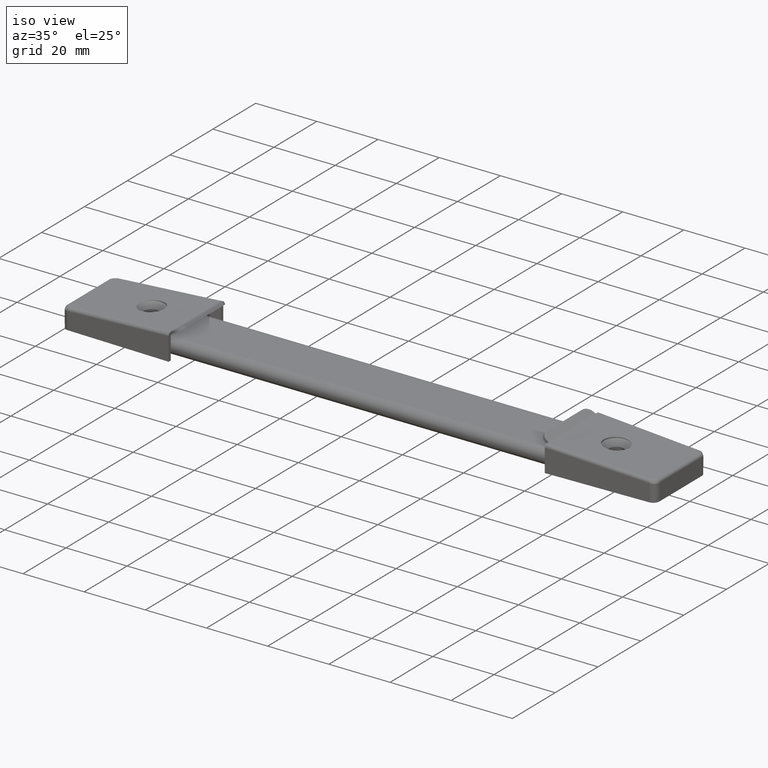
[diagram: clean part render]
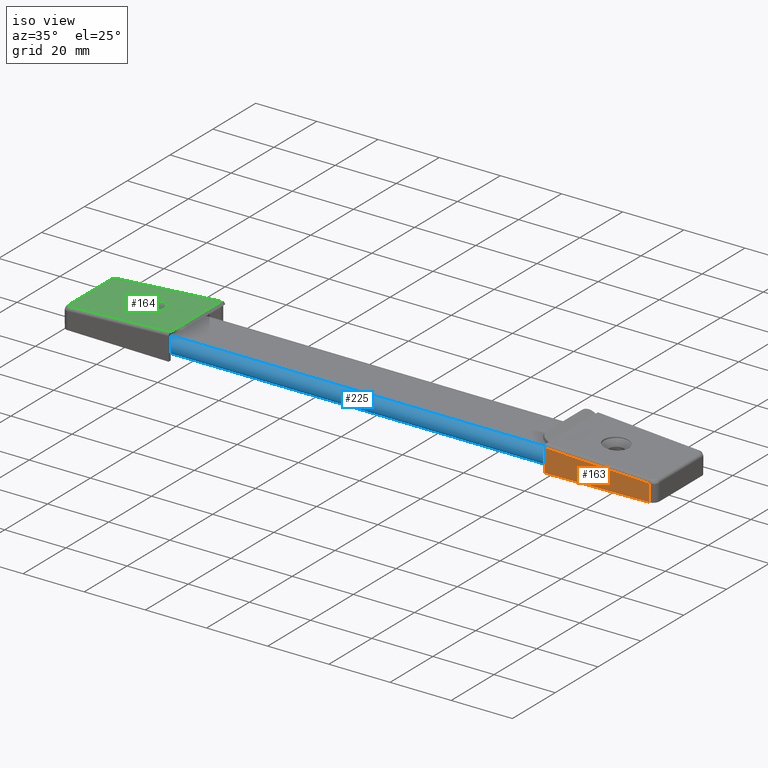
[diagram: same view with three faces highlighted in distinct colors, each labeled with its STEP entity id]
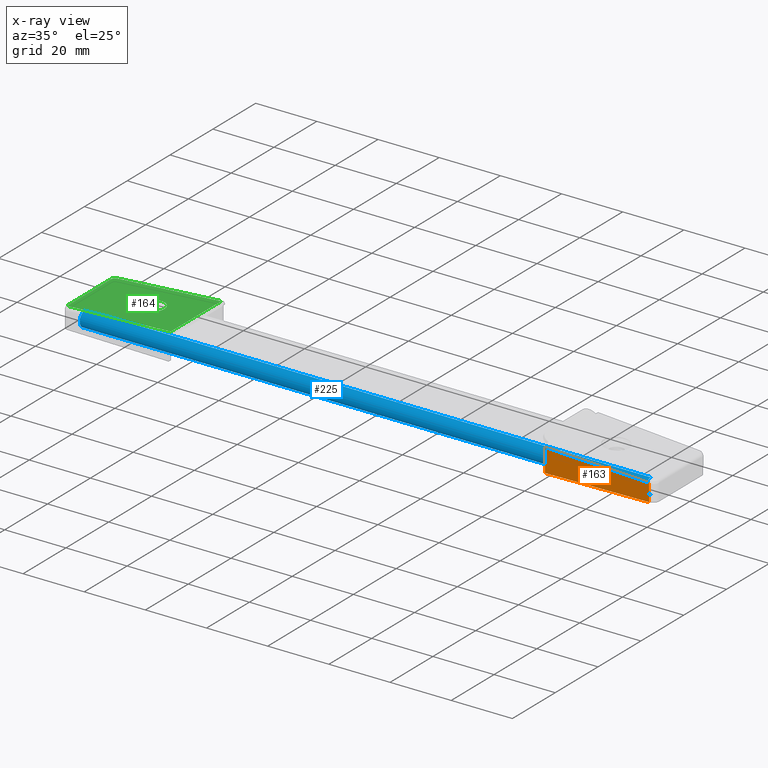
[diagram: x-ray of the same camera — body ghosted, the three highlighted faces saturated]
A machine part, iso view with three faces highlighted in distinct colors.
The next image is the same camera in x-ray (body ghosted, the three faces saturated) — at least one of them is partly hidden behind the body in this view.
Their STEP definitions:

[orange] entity #163 — the highlighted planar face has unit normal (0.0252, -0.9997, 0).
#163=ADVANCED_FACE('',(#287),#286,.T.);
#286=PLANE('',#1086);
#287=FACE_OUTER_BOUND('',#1087,.T.);
#1083=CARTESIAN_POINT('',(5.81449760894E+01,-1.28345101633E+01,-7.49983222875E-01));
#1084=DIRECTION('',(2.51810590883E-02,-9.99682906858E-01,0.00000000000E+00));
#1085=DIRECTION('',(9.99682906858E-01,2.51810590883E-02,0.00000000000E+00));
#1086=AXIS2_PLACEMENT_3D('',#1083,#1084,#1085);
#1087=EDGE_LOOP('',(#1557,#1558,#1559,#1560));
#1557=ORIENTED_EDGE('',*,*,#1953,.F.);
#1558=ORIENTED_EDGE('',*,*,#1954,.T.);
#1559=ORIENTED_EDGE('',*,*,#1955,.T.);
#1560=ORIENTED_EDGE('',*,*,#1948,.F.);
#1948=EDGE_CURVE('',#2259,#2266,#2267,.T.);
#1953=EDGE_CURVE('',#2300,#2259,#2301,.T.);
#1954=EDGE_CURVE('',#2300,#2307,#2308,.T.);
#1955=EDGE_CURVE('',#2307,#2266,#2314,.T.);
#2259=VERTEX_POINT('',#3540);
#2266=VERTEX_POINT('',#3545);
#2267=LINE('',#3546,#3547);
#2300=VERTEX_POINT('',#3565);
#2301=LINE('',#3566,#3567);
#2307=VERTEX_POINT('',#3569);
#2308=LINE('',#3570,#3571);
#2314=LINE('',#3573,#3574);
#3540=CARTESIAN_POINT('',(9.50503744193E+01,-1.19048983738E+01,0.00000000000E+00));
#3545=CARTESIAN_POINT('',(6.15000123012E+01,-1.27500000006E+01,0.00000000000E+00));
#3546=CARTESIAN_POINT('',(9.50503744193E+01,-1.19048983738E+01,0.00000000000E+00));
#3547=VECTOR('',#3548,3.35610040824E+01);
#3548=DIRECTION('',(-9.99682906858E-01,-2.51810590883E-02,0.00000000000E+00));
#3565=CARTESIAN_POINT('',(9.50503744193E+01,-1.19048983738E+01,5.60967098266E+00));
#3566=CARTESIAN_POINT('',(9.50503744193E+01,-1.19048983738E+01,5.60967098266E+00));
#3567=VECTOR('',#3568,5.60967098266E+00);
#3568=DIRECTION('',(0.00000000000E+00,0.00000000000E+00,-1.00000000000E+00));
#3569=CARTESIAN_POINT('',(6.15000123012E+01,-1.27500000006E+01,7.49983222875E+00));
#3570=CARTESIAN_POINT('',(9.50503744193E+01,-1.19048983738E+01,5.60967098266E+00));
#3571=VECTOR('',#3572,3.36141890361E+01);
#3572=DIRECTION('',(-9.98101191200E-01,-2.51412171793E-02,5.62310530253E-02));
#3573=CARTESIAN_POINT('',(6.15000123012E+01,-1.27500000006E+01,7.49983222875E+00));
#3574=VECTOR('',#3575,7.49983222875E+00);
#3575=DIRECTION('',(0.00000000000E+00,0.00000000000E+00,-1.00000000000E+00));

[blue] entity #225 — the highlighted cylindrical surface (edge-blend (fillet) strip) has radius 2.5 mm, axis along (1, -0, 0).
#225=ADVANCED_FACE('',(#919),#918,.T.);
#918=CYLINDRICAL_SURFACE('',#1470,2.50000000000E+00);
#919=FACE_OUTER_BOUND('',#1471,.T.);
#1467=CARTESIAN_POINT('',(-6.32939646640E-16,-7.50000000000E+00,2.50000000000E+00));
#1468=DIRECTION('',(1.00000000000E+00,-8.43919528854E-17,-0.00000000000E+00));
#1469=DIRECTION('',(8.43919528854E-17,1.00000000000E+00,-0.00000000000E+00));
#1470=AXIS2_PLACEMENT_3D('',#1467,#1468,#1469);
#1471=EDGE_LOOP('',(#1868,#1869,#1870,#1871));
#1868=ORIENTED_EDGE('',*,*,#2105,.F.);
#1869=ORIENTED_EDGE('',*,*,#2098,.F.);
#1870=ORIENTED_EDGE('',*,*,#2113,.F.);
#1871=ORIENTED_EDGE('',*,*,#2091,.F.);
#2091=EDGE_CURVE('',#3207,#3192,#3214,.T.);
#2098=EDGE_CURVE('',#3256,#3263,#3264,.T.);
#2105=EDGE_CURVE('',#3263,#3207,#3310,.T.);
#2113=EDGE_CURVE('',#3192,#3256,#3363,.T.);
#3192=VERTEX_POINT('',#4078);
#3207=VERTEX_POINT('',#4088);
#3214=CIRCLE('',#4095,2.50000000000E+00);
#3256=VERTEX_POINT('',#4120);
#3263=VERTEX_POINT('',#4124);
#3264=CIRCLE('',#4128,2.50000000000E+00);
#3310=LINE('',#4153,#4154);
#3363=LINE('',#4185,#4186);
#4078=CARTESIAN_POINT('',(9.25000000000E+01,-7.50000000000E+00,0.00000000000E+00));
#4088=CARTESIAN_POINT('',(9.25000000000E+01,-7.50000000000E+00,5.00000000000E+00));
#4092=CARTESIAN_POINT('',(9.25000000000E+01,-7.50000000000E+00,2.50000000000E+00));
#4093=DIRECTION('',(1.00000000000E+00,0.00000000000E+00,-0.00000000000E+00));
#4094=DIRECTION('',(-0.00000000000E+00,-0.00000000000E+00,-1.00000000000E+00));
#4095=AXIS2_PLACEMENT_3D('',#4092,#4093,#4094);
#4120=CARTESIAN_POINT('',(-9.25000000000E+01,-7.50000000000E+00,0.00000000000E+00));
#4124=CARTESIAN_POINT('',(-9.25000000000E+01,-7.50000000000E+00,5.00000000000E+00));
#4125=CARTESIAN_POINT('',(-9.25000000000E+01,-7.50000000000E+00,2.50000000000E+00));
#4126=DIRECTION('',(-1.00000000000E+00,5.55111512313E-15,1.75162308041E-46));
#4127=DIRECTION('',(1.01968962759E-30,1.83690953073E-16,1.00000000000E+00));
#4128=AXIS2_PLACEMENT_3D('',#4125,#4126,#4127);
#4153=CARTESIAN_POINT('',(-9.25000000000E+01,-7.50000000000E+00,5.00000000000E+00));
#4154=VECTOR('',#4155,1.85000000000E+02);
#4155=DIRECTION('',(1.00000000000E+00,-8.64173597546E-17,0.00000000000E+00));
#4185=CARTESIAN_POINT('',(9.25000000000E+01,-7.50000000000E+00,0.00000000000E+00));
#4186=VECTOR('',#4187,1.85000000000E+02);
#4187=DIRECTION('',(-1.00000000000E+00,8.64173597546E-17,0.00000000000E+00));

[green] entity #164 — the highlighted planar face has unit normal (-0.0562, 0, 0.9984).
#164=ADVANCED_FACE('',(#297,#298),#296,.T.);
#296=PLANE('',#1091);
#297=FACE_OUTER_BOUND('',#1092,.T.);
#298=FACE_BOUND('',#1093,.T.);
#1088=CARTESIAN_POINT('',(5.80448545443E+01,-1.41013067575E+01,8.69465608201E+00));
#1089=DIRECTION('',(5.62488327390E-02,0.00000000000E+00,9.98416781117E-01));
#1090=DIRECTION('',(9.98416781117E-01,0.00000000000E+00,-5.62488327390E-02));
#1091=AXIS2_PLACEMENT_3D('',#1088,#1089,#1090);
#1092=EDGE_LOOP('',(#1561,#1562,#1563,#1564,#1565,#1566,#1567,#1568));
#1093=EDGE_LOOP('',(#1569,#1570));
#1561=ORIENTED_EDGE('',*,*,#1931,.T.);
#1562=ORIENTED_EDGE('',*,*,#1956,.T.);
#1563=ORIENTED_EDGE('',*,*,#1941,.F.);
#1564=ORIENTED_EDGE('',*,*,#1957,.T.);
#1565=ORIENTED_EDGE('',*,*,#1958,.F.);
#1566=ORIENTED_EDGE('',*,*,#1959,.T.);
#1567=ORIENTED_EDGE('',*,*,#1960,.T.);
#1568=ORIENTED_EDGE('',*,*,#1961,.T.);
#1569=ORIENTED_EDGE('',*,*,#1962,.T.);
#1570=ORIENTED_EDGE('',*,*,#1963,.T.);
#1931=EDGE_CURVE('',#2129,#2144,#2151,.T.);
#1941=EDGE_CURVE('',#2212,#2219,#2220,.T.);
#1956=EDGE_CURVE('',#2144,#2219,#2320,.T.);
#1957=EDGE_CURVE('',#2212,#2326,#2327,.T.);
#1958=EDGE_CURVE('',#2333,#2326,#2334,.T.);
#1959=EDGE_CURVE('',#2333,#2340,#2341,.T.);
#1960=EDGE_CURVE('',#2340,#2347,#2348,.T.);
#1961=EDGE_CURVE('',#2347,#2129,#2354,.T.);
#1962=EDGE_CURVE('',#2360,#2361,#2362,.T.);
#1963=EDGE_CURVE('',#2361,#2360,#2368,.T.);
#2129=VERTEX_POINT('',#3464);
#2144=VERTEX_POINT('',#3474);
#2151=(BOUNDED_CURVE() B_SPLINE_CURVE(2,(#3479,#3480,#3481),.UNSPECIFIED.,.F.,.F.) B_SPLINE_CURVE_WITH_KNOTS((3,3),(4.51017001503E-12,1.54561260580E+00),.UNSPECIFIED.) CURVE() GEOMETRIC_REPRESENTATION_ITEM() RATIONAL_B_SPLINE_CURVE((1.00000000000E+00,7.15954278947E-01,1.00000000000E+00)) REPRESENTATION_ITEM('') );
#2212=VERTEX_POINT('',#3514);
#2219=VERTEX_POINT('',#3518);
#2220=(BOUNDED_CURVE() B_SPLINE_CURVE(1,(#3519,#3520),.UNSPECIFIED.,.F.,.F.) B_SPLINE_CURVE_WITH_KNOTS((2,2),(0.00000000000E+00,1.00000000000E+00),.UNSPECIFIED.) CURVE() GEOMETRIC_REPRESENTATION_ITEM() RATIONAL_B_SPLINE_CURVE((1.00000000000E+00,1.00000000000E+00)) REPRESENTATION_ITEM('') );
#2320=(BOUNDED_CURVE() B_SPLINE_CURVE(1,(#3576,#3577),.UNSPECIFIED.,.F.,.F.) B_SPLINE_CURVE_WITH_KNOTS((2,2),(0.00000000000E+00,1.00000000000E+00),.UNSPECIFIED.) CURVE() GEOMETRIC_REPRESENTATION_ITEM() RATIONAL_B_SPLINE_CURVE((1.00000000000E+00,1.00000000000E+00)) REPRESENTATION_ITEM('') );
#2326=VERTEX_POINT('',#3578);
#2327=LINE('',#3579,#3580);
#2333=VERTEX_POINT('',#3582);
#2334=(BOUNDED_CURVE() B_SPLINE_CURVE(1,(#3583,#3584),.UNSPECIFIED.,.F.,.F.) B_SPLINE_CURVE_WITH_KNOTS((2,2),(0.00000000000E+00,1.00000000000E+00),.UNSPECIFIED.) CURVE() GEOMETRIC_REPRESENTATION_ITEM() RATIONAL_B_SPLINE_CURVE((1.00000000000E+00,1.00000000000E+00)) REPRESENTATION_ITEM('') );
#2340=VERTEX_POINT('',#3585);
#2341=(BOUNDED_CURVE() B_SPLINE_CURVE(1,(#3586,#3587),.UNSPECIFIED.,.F.,.F.) B_SPLINE_CURVE_WITH_KNOTS((2,2),(0.00000000000E+00,1.00000000000E+00),.UNSPECIFIED.) CURVE() GEOMETRIC_REPRESENTATION_ITEM() RATIONAL_B_SPLINE_CURVE((1.00000000000E+00,1.00000000000E+00)) REPRESENTATION_ITEM('') );
#2347=VERTEX_POINT('',#3588);
#2348=(BOUNDED_CURVE() B_SPLINE_CURVE(2,(#3589,#3590,#3591),.UNSPECIFIED.,.F.,.F.) B_SPLINE_CURVE_WITH_KNOTS((3,3),(-1.54561260579E+00,3.73923114694E-12),.UNSPECIFIED.) CURVE() GEOMETRIC_REPRESENTATION_ITEM() RATIONAL_B_SPLINE_CURVE((1.00000000000E+00,7.15954278947E-01,1.00000000000E+00)) REPRESENTATION_ITEM('') );
#2354=LINE('',#3592,#3593);
#2360=VERTEX_POINT('',#3595);
#2361=VERTEX_POINT('',#3596);
#2362=(BOUNDED_CURVE() B_SPLINE_CURVE(2,(#3597,#3598,#3599,#3600,#3601),.UNSPECIFIED.,.F.,.F.) B_SPLINE_CURVE_WITH_KNOTS((3,2,3),(-6.28318530718E+00,-4.71238898038E+00,-3.14159264598E+00),.UNSPECIFIED.) CURVE() GEOMETRIC_REPRESENTATION_ITEM() RATIONAL_B_SPLINE_CURVE((1.00000000000E+00,7.07106781187E-01,1.00000000000E+00,7.07106781187E-01,1.00000000000E+00)) REPRESENTATION_ITEM('') );
#2368=(BOUNDED_CURVE() B_SPLINE_CURVE(2,(#3602,#3603,#3604,#3605,#3606),.UNSPECIFIED.,.F.,.F.) B_SPLINE_CURVE_WITH_KNOTS((3,2,3),(-3.14159264598E+00,-1.57079632679E+00,-0.00000000000E+00),.UNSPECIFIED.) CURVE() GEOMETRIC_REPRESENTATION_ITEM() RATIONAL_B_SPLINE_CURVE((1.00000000000E+00,7.07106781187E-01,1.00000000000E+00,7.07106781187E-01,1.00000000000E+00)) REPRESENTATION_ITEM('') );
#3464=CARTESIAN_POINT('',(9.60562611338E+01,9.90553255994E+00,6.55316838683E+00));
#3474=CARTESIAN_POINT('',(9.50814421929E+01,1.09052154668E+01,6.60808776378E+00));
#3479=CARTESIAN_POINT('',(9.60562611338E+01,9.90553255994E+00,6.55316838683E+00));
#3480=CARTESIAN_POINT('',(9.60562611338E+01,1.08806607073E+01,6.55316838683E+00));
#3481=CARTESIAN_POINT('',(9.50814421929E+01,1.09052154668E+01,6.60808776378E+00));
#3514=CARTESIAN_POINT('',(6.15000123012E+01,1.10000000016E+01,8.49997538245E+00));
#3518=CARTESIAN_POINT('',(6.15004369615E+01,1.17510889642E+01,8.49997538245E+00));
#3519=CARTESIAN_POINT('',(6.15000123011E+01,1.10000000016E+01,8.49997538245E+00));
#3520=CARTESIAN_POINT('',(6.15004369615E+01,1.17510889642E+01,8.49997538245E+00));
#3576=CARTESIAN_POINT('',(9.50814421929E+01,1.09052154668E+01,6.60808776378E+00));
#3577=CARTESIAN_POINT('',(6.15004369615E+01,1.17510889642E+01,8.49997538245E+00));
#3578=CARTESIAN_POINT('',(6.15000123012E+01,-1.09999999998E+01,8.49997538245E+00));
#3579=CARTESIAN_POINT('',(6.15000123012E+01,1.10000000016E+01,8.49997538245E+00));
#3580=VECTOR('',#3581,2.20000000014E+01);
#3581=DIRECTION('',(0.00000000000E+00,-1.00000000000E+00,0.00000000000E+00));
#3582=CARTESIAN_POINT('',(6.15004369615E+01,-1.17510889646E+01,8.49997538245E+00));
#3583=CARTESIAN_POINT('',(6.15004369615E+01,-1.17510889646E+01,8.49997538245E+00));
#3584=CARTESIAN_POINT('',(6.15000123012E+01,-1.09999999998E+01,8.49997538245E+00));
#3585=CARTESIAN_POINT('',(9.50814421930E+01,-1.09052154669E+01,6.60808776378E+00));
#3586=CARTESIAN_POINT('',(6.15004369615E+01,-1.17510889646E+01,8.49997538245E+00));
#3587=CARTESIAN_POINT('',(9.50814421930E+01,-1.09052154669E+01,6.60808776378E+00));
#3588=CARTESIAN_POINT('',(9.60562611339E+01,-9.90553256007E+00,6.55316838682E+00));
#3589=CARTESIAN_POINT('',(9.50814421930E+01,-1.09052154669E+01,6.60808776378E+00));
#3590=CARTESIAN_POINT('',(9.60562611339E+01,-1.08806607074E+01,6.55316838682E+00));
#3591=CARTESIAN_POINT('',(9.60562611339E+01,-9.90553256007E+00,6.55316838682E+00));
#3592=CARTESIAN_POINT('',(9.60562611339E+01,-9.90553256005E+00,6.55316838682E+00));
#3593=VECTOR('',#3594,1.98110651200E+01);
#3594=DIRECTION('',(-3.77022900741E-12,1.00000000000E+00,2.12416108223E-13));
#3595=CARTESIAN_POINT('',(8.01000123012E+01,-5.31218994535E-16,7.45211198303E+00));
#3596=CARTESIAN_POINT('',(7.19000123012E+01,2.80776237010E-08,7.91408381402E+00));
#3597=CARTESIAN_POINT('',(8.01000123012E+01,-1.00417721013E-15,7.45211198303E+00));
#3598=CARTESIAN_POINT('',(8.01000123012E+01,-4.10000000000E+00,7.45211198303E+00));
#3599=CARTESIAN_POINT('',(7.60000123012E+01,-4.10000000000E+00,7.68309789852E+00));
#3600=CARTESIAN_POINT('',(7.19000123012E+01,-4.10000000000E+00,7.91408381402E+00));
#3601=CARTESIAN_POINT('',(7.19000123012E+01,5.02088605067E-16,7.91408381402E+00));
#3602=CARTESIAN_POINT('',(7.19000123012E+01,5.02088605067E-16,7.91408381402E+00));
#3603=CARTESIAN_POINT('',(7.19000123012E+01,4.10000000000E+00,7.91408381402E+00));
#3604=CARTESIAN_POINT('',(7.60000123012E+01,4.10000000000E+00,7.68309789852E+00));
#3605=CARTESIAN_POINT('',(8.01000123012E+01,4.10000000000E+00,7.45211198303E+00));
#3606=CARTESIAN_POINT('',(8.01000123012E+01,0.00000000000E+00,7.45211198303E+00));